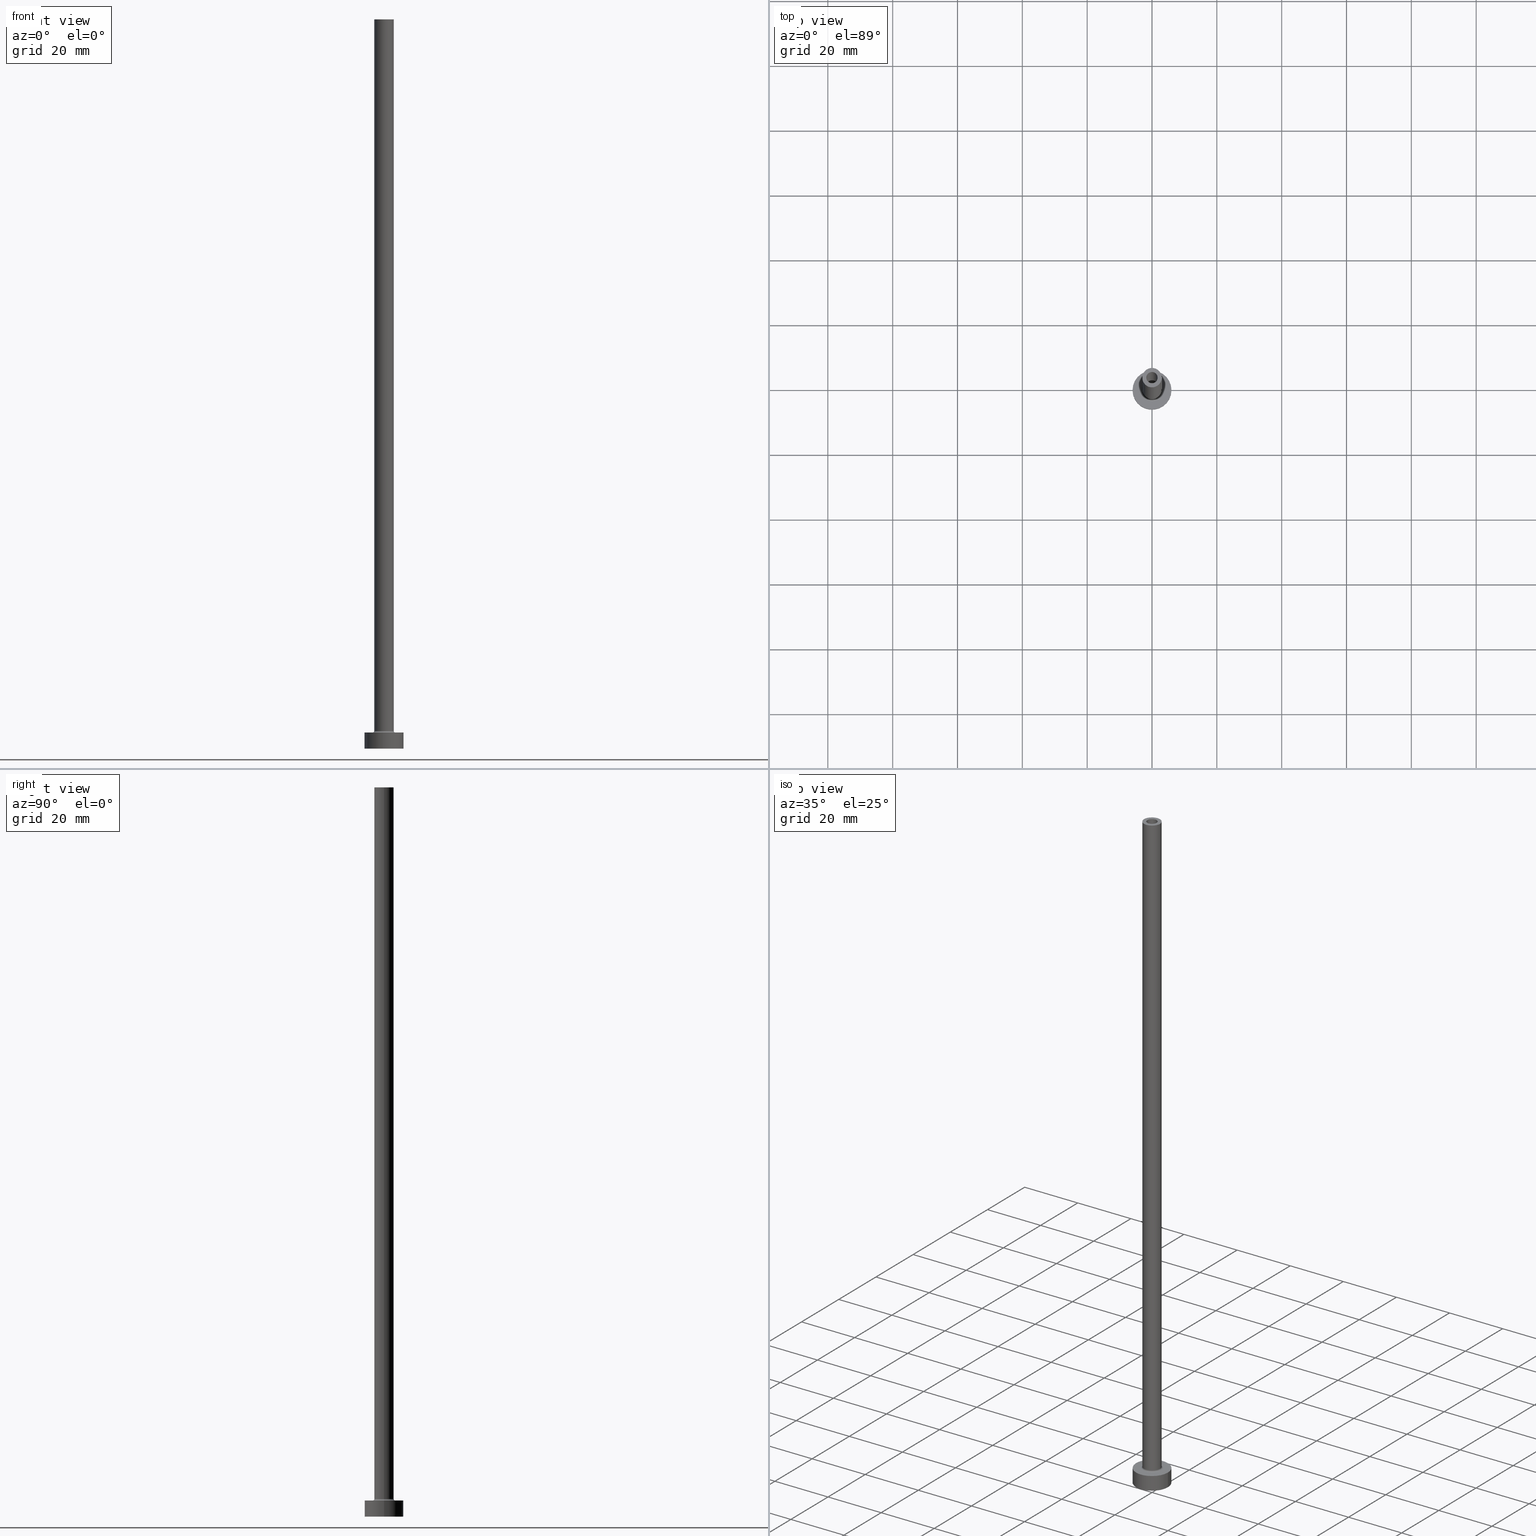
[diagram: canonical four-view strip — front | top / right | iso, engineering-drawing reading convention]
A machine part, canonical four-view strip (front | top / right | iso — engineering-drawing reading convention). The complete STEP part file that produces these views, byte-faithful:
ISO-10303-21;
HEADER;
FILE_DESCRIPTION (( 'STEP AP203' ),
    '1' );
FILE_NAME ('7b9f.STEP',
    '2023-02-13T17:50:50',
    ( '' ),
    ( '' ),
    'SwSTEP 2.0',
    'SolidWorks 2019',
    '' );
FILE_SCHEMA (( 'CONFIG_CONTROL_DESIGN' ));
ENDSEC;

DATA;
#1 = AXIS2_PLACEMENT_3D ( 'NONE', #327, #281, #39 ) ;
#2 = VECTOR ( 'NONE', #253, 1000.000000000000000 ) ;
#3 = ORIENTED_EDGE ( 'NONE', *, *, #32, .T. ) ;
#4 = LOCAL_TIME ( 18, 50, 50.00000000000000000, #168 ) ;
#5 = DIRECTION ( 'NONE',  ( 1.000000000000000000, 0.000000000000000000, 0.000000000000000000 ) ) ;
#6 = EDGE_CURVE ( 'NONE', #291, #380, #91, .T. ) ;
#7 = ORIENTED_EDGE ( 'NONE', *, *, #151, .T. ) ;
#8 = DIRECTION ( 'NONE',  ( 0.000000000000000000, 0.000000000000000000, 1.000000000000000000 ) ) ;
#9 = CARTESIAN_POINT ( 'NONE',  ( 0.000000000000000000, 0.000000000000000000, 0.000000000000000000 ) ) ;
#10 = AXIS2_PLACEMENT_3D ( 'NONE', #56, #21, #300 ) ;
#11 = EDGE_CURVE ( 'NONE', #363, #77, #459, .T. ) ;
#12 = LINE ( 'NONE', #439, #421 ) ;
#13 = DIRECTION ( 'NONE',  ( 0.000000000000000000, 0.000000000000000000, 1.000000000000000000 ) ) ;
#14 = EDGE_CURVE ( 'NONE', #77, #363, #368, .T. ) ;
#15 = CIRCLE ( 'NONE', #156, 6.000000000000000888 ) ;
#16 = AXIS2_PLACEMENT_3D ( 'NONE', #292, #435, #187 ) ;
#17 = COORDINATED_UNIVERSAL_TIME_OFFSET ( 1, 0, .AHEAD. ) ;
#18 = CARTESIAN_POINT ( 'NONE',  ( -1.899999999999999911, 0.000000000000000000, 185.3740115370177648 ) ) ;
#19 = EDGE_LOOP ( 'NONE', ( #279, #171, #223, #461 ) ) ;
#20 = FACE_OUTER_BOUND ( 'NONE', #102, .T. ) ;
#21 = DIRECTION ( 'NONE',  ( 0.000000000000000000, 0.000000000000000000, 1.000000000000000000 ) ) ;
#22 = VERTEX_POINT ( 'NONE', #59 ) ;
#23 = DIRECTION ( 'NONE',  ( 1.000000000000000000, 0.000000000000000000, 0.000000000000000000 ) ) ;
#24 = APPROVAL_DATE_TIME ( #268, #241 ) ;
#25 = ORIENTED_EDGE ( 'NONE', *, *, #444, .T. ) ;
#26 = CIRCLE ( 'NONE', #255, 1.899999999999999911 ) ;
#27 = CIRCLE ( 'NONE', #406, 0.4999999999999995559 ) ;
#28 = CC_DESIGN_APPROVAL ( #219, ( #34 ) ) ;
#29 = DIRECTION ( 'NONE',  ( 0.000000000000000000, -1.000000000000000000, 0.000000000000000000 ) ) ;
#30 = EDGE_LOOP ( 'NONE', ( #212, #113, #88, #57 ) ) ;
#31 = CYLINDRICAL_SURFACE ( 'NONE', #129, 1.750000000000000000 ) ;
#32 = EDGE_CURVE ( 'NONE', #37, #391, #242, .T. ) ;
#33 = AXIS2_PLACEMENT_3D ( 'NONE', #334, #353, #455 ) ;
#34 = PRODUCT_DEFINITION_FORMATION_WITH_SPECIFIED_SOURCE ( 'LIBOVOLN�', '', #38, .NOT_KNOWN. ) ;
#35 = ORIENTED_EDGE ( 'NONE', *, *, #190, .F. ) ;
#36 = DIRECTION ( 'NONE',  ( 1.000000000000000000, 0.000000000000000000, 0.000000000000000000 ) ) ;
#37 = VERTEX_POINT ( 'NONE', #269 ) ;
#38 = PRODUCT ( '7b9f', '7b9f', '', ( #100 ) ) ;
#39 = DIRECTION ( 'NONE',  ( -1.000000000000000000, 0.000000000000000000, 0.000000000000000000 ) ) ;
#40 = ORIENTED_EDGE ( 'NONE', *, *, #14, .T. ) ;
#41 = EDGE_LOOP ( 'NONE', ( #369, #282 ) ) ;
#42 = CARTESIAN_POINT ( 'NONE',  ( -1.750000000000000000, 0.000000000000000000, 225.0000000000000000 ) ) ;
#43 = EDGE_LOOP ( 'NONE', ( #323, #301, #3, #58 ) ) ;
#44 = FACE_OUTER_BOUND ( 'NONE', #105, .T. ) ;
#45 = CLOSED_SHELL ( 'NONE', ( #175, #142, #405, #355, #381, #339, #297, #440, #99, #154, #365, #247, #78, #170 ) ) ;
#46 = UNCERTAINTY_MEASURE_WITH_UNIT (LENGTH_MEASURE( 1.000000000000000082E-05 ), #388, 'distance_accuracy_value', 'NONE');
#47 = CARTESIAN_POINT ( 'NONE',  ( 0.000000000000000000, 0.000000000000000000, 5.000000000000000000 ) ) ;
#48 = ORIENTED_EDGE ( 'NONE', *, *, #348, .T. ) ;
#49 = CARTESIAN_POINT ( 'NONE',  ( 0.000000000000000000, 0.000000000000000000, 5.000000000000000000 ) ) ;
#50 = EDGE_CURVE ( 'NONE', #266, #164, #294, .T. ) ;
#51 = DIRECTION ( 'NONE',  ( 0.000000000000000000, 0.000000000000000000, 1.000000000000000000 ) ) ;
#52 = CIRCLE ( 'NONE', #295, 3.000000000000000444 ) ;
#53 = ORIENTED_EDGE ( 'NONE', *, *, #11, .T. ) ;
#54 = CC_DESIGN_APPROVAL ( #165, ( #285 ) ) ;
#55 = PERSON_AND_ORGANIZATION ( #179, #298 ) ;
#56 = CARTESIAN_POINT ( 'NONE',  ( 0.000000000000000000, 0.000000000000000000, 180.0000000000000000 ) ) ;
#57 = ORIENTED_EDGE ( 'NONE', *, *, #195, .F. ) ;
#58 = ORIENTED_EDGE ( 'NONE', *, *, #210, .F. ) ;
#59 = CARTESIAN_POINT ( 'NONE',  ( 1.750000000000000000, 2.143131898507868297E-16, 225.0000000000000000 ) ) ;
#60 = CARTESIAN_POINT ( 'NONE',  ( 0.000000000000000000, 0.000000000000000000, 225.0000000000000000 ) ) ;
#61 = EDGE_CURVE ( 'NONE', #164, #37, #178, .T. ) ;
#62 = PERSON_AND_ORGANIZATION ( #179, #298 ) ;
#63 = ORIENTED_EDGE ( 'NONE', *, *, #425, .F. ) ;
#64 = DIRECTION ( 'NONE',  ( -0.000000000000000000, -0.000000000000000000, -1.000000000000000000 ) ) ;
#65 = APPROVAL_STATUS ( 'not_yet_approved' ) ;
#66 = AXIS2_PLACEMENT_3D ( 'NONE', #208, #424, #410 ) ;
#67 = APPLICATION_PROTOCOL_DEFINITION ( 'international standard', 'config_control_design', 1994, #148 ) ;
#68 = FACE_OUTER_BOUND ( 'NONE', #423, .T. ) ;
#69 = APPROVAL_DATE_TIME ( #347, #165 ) ;
#70 = EDGE_CURVE ( 'NONE', #319, #169, #81, .T. ) ;
#71 = ORIENTED_EDGE ( 'NONE', *, *, #432, .F. ) ;
#72 =( NAMED_UNIT ( * ) SI_UNIT ( $, .STERADIAN. ) SOLID_ANGLE_UNIT ( ) );
#73 = VERTEX_POINT ( 'NONE', #134 ) ;
#74 = AXIS2_PLACEMENT_3D ( 'NONE', #215, #137, #276 ) ;
#75 = AXIS2_PLACEMENT_3D ( 'NONE', #447, #349, #23 ) ;
#76 = APPROVAL_PERSON_ORGANIZATION ( #55, #241, #133 ) ;
#77 = VERTEX_POINT ( 'NONE', #389 ) ;
#78 = ADVANCED_FACE ( 'NONE', ( #173, #68 ), #387, .F. ) ;
#79 = CARTESIAN_POINT ( 'NONE',  ( -6.000000000000000888, 0.000000000000000000, 5.000000000000000000 ) ) ;
#80 = FACE_OUTER_BOUND ( 'NONE', #90, .T. ) ;
#81 = CIRCLE ( 'NONE', #33, 6.000000000000000888 ) ;
#82 = DIRECTION ( 'NONE',  ( -0.000000000000000000, -0.000000000000000000, -1.000000000000000000 ) ) ;
#83 = DIRECTION ( 'NONE',  ( 1.000000000000000000, 0.000000000000000000, 0.000000000000000000 ) ) ;
#84 = CARTESIAN_POINT ( 'NONE',  ( 1.750000000000000000, 2.143131898507868297E-16, 180.0000000000000000 ) ) ;
#85 = DIRECTION ( 'NONE',  ( 0.000000000000000000, 0.000000000000000000, 1.000000000000000000 ) ) ;
#86 = EDGE_CURVE ( 'NONE', #328, #458, #26, .T. ) ;
#87 = APPROVAL_STATUS ( 'not_yet_approved' ) ;
#88 = ORIENTED_EDGE ( 'NONE', *, *, #86, .T. ) ;
#89 = PERSON_AND_ORGANIZATION ( #179, #298 ) ;
#90 = EDGE_LOOP ( 'NONE', ( #431, #25 ) ) ;
#91 = CIRCLE ( 'NONE', #115, 3.500000000000000444 ) ;
#92 = DIRECTION ( 'NONE',  ( 0.000000000000000000, 0.000000000000000000, 1.000000000000000000 ) ) ;
#93 = CYLINDRICAL_SURFACE ( 'NONE', #422, 6.000000000000000888 ) ;
#94 = LOCAL_TIME ( 18, 50, 50.00000000000000000, #17 ) ;
#95 = EDGE_CURVE ( 'NONE', #141, #251, #209, .T. ) ;
#96 = CARTESIAN_POINT ( 'NONE',  ( 6.000000000000000888, 7.347880794884120722E-16, 5.000000000000000000 ) ) ;
#97 = VECTOR ( 'NONE', #152, 1000.000000000000000 ) ;
#98 = AXIS2_PLACEMENT_3D ( 'NONE', #197, #232, #377 ) ;
#99 = ADVANCED_FACE ( 'NONE', ( #457 ), #236, .T. ) ;
#100 = MECHANICAL_CONTEXT ( 'NONE', #148, 'mechanical' ) ;
#101 = CC_DESIGN_PERSON_AND_ORGANIZATION_ASSIGNMENT ( #89, #378, ( #34 ) ) ;
#102 = EDGE_LOOP ( 'NONE', ( #315, #226, #109, #332 ) ) ;
#103 = SHAPE_DEFINITION_REPRESENTATION ( #284, #437 ) ;
#104 = PERSON_AND_ORGANIZATION ( #179, #298 ) ;
#105 = EDGE_LOOP ( 'NONE', ( #119, #35 ) ) ;
#106 = EDGE_LOOP ( 'NONE', ( #48, #361, #229, #216 ) ) ;
#107 = VECTOR ( 'NONE', #429, 1000.000000000000000 ) ;
#108 = PRODUCT_DEFINITION ( 'NEZN�M�', '', #34, #395 ) ;
#109 = ORIENTED_EDGE ( 'NONE', *, *, #195, .T. ) ;
#110 = FACE_BOUND ( 'NONE', #450, .T. ) ;
#111 = CARTESIAN_POINT ( 'NONE',  ( 1.899999999999999911, 2.326828918379971365E-16, 180.0000000000000000 ) ) ;
#112 = CARTESIAN_POINT ( 'NONE',  ( 1.750000000000000000, 2.143131898507868297E-16, 225.0000000000000000 ) ) ;
#113 = ORIENTED_EDGE ( 'NONE', *, *, #329, .T. ) ;
#114 = FACE_OUTER_BOUND ( 'NONE', #305, .T. ) ;
#115 = AXIS2_PLACEMENT_3D ( 'NONE', #373, #302, #120 ) ;
#116 = TOROIDAL_SURFACE ( 'NONE', #351, 3.500000000000000444, 0.5000000000000000000 ) ;
#117 = DIRECTION ( 'NONE',  ( 0.000000000000000000, 0.000000000000000000, -1.000000000000000000 ) ) ;
#118 = DIRECTION ( 'NONE',  ( 0.000000000000000000, 0.000000000000000000, 1.000000000000000000 ) ) ;
#119 = ORIENTED_EDGE ( 'NONE', *, *, #70, .F. ) ;
#120 = DIRECTION ( 'NONE',  ( 1.000000000000000000, 0.000000000000000000, 0.000000000000000000 ) ) ;
#121 = EDGE_CURVE ( 'NONE', #22, #73, #343, .T. ) ;
#122 = LOCAL_TIME ( 18, 50, 50.00000000000000000, #127 ) ;
#123 = DIRECTION ( 'NONE',  ( -0.000000000000000000, -0.000000000000000000, -1.000000000000000000 ) ) ;
#124 = CYLINDRICAL_SURFACE ( 'NONE', #341, 1.899999999999999911 ) ;
#125 = APPROVAL_DATE_TIME ( #306, #219 ) ;
#126 = EDGE_CURVE ( 'NONE', #37, #291, #427, .T. ) ;
#127 = COORDINATED_UNIVERSAL_TIME_OFFSET ( 1, 0, .AHEAD. ) ;
#128 = ORIENTED_EDGE ( 'NONE', *, *, #420, .T. ) ;
#129 = AXIS2_PLACEMENT_3D ( 'NONE', #324, #280, #250 ) ;
#130 = DIRECTION ( 'NONE',  ( 1.000000000000000000, 0.000000000000000000, 0.000000000000000000 ) ) ;
#131 = PERSON_AND_ORGANIZATION_ROLE ( 'design_owner' ) ;
#132 = DATE_TIME_ROLE ( 'classification_date' ) ;
#133 = APPROVAL_ROLE ( '' ) ;
#134 = CARTESIAN_POINT ( 'NONE',  ( -1.750000000000000000, 0.000000000000000000, 225.0000000000000000 ) ) ;
#135 = ORIENTED_EDGE ( 'NONE', *, *, #121, .T. ) ;
#136 = DIRECTION ( 'NONE',  ( 0.000000000000000000, 0.000000000000000000, 1.000000000000000000 ) ) ;
#137 = DIRECTION ( 'NONE',  ( 0.000000000000000000, 0.000000000000000000, 1.000000000000000000 ) ) ;
#138 = VECTOR ( 'NONE', #402, 1000.000000000000000 ) ;
#139 = CARTESIAN_POINT ( 'NONE',  ( -1.899999999999999911, 0.000000000000000000, 0.000000000000000000 ) ) ;
#140 = AXIS2_PLACEMENT_3D ( 'NONE', #371, #82, #220 ) ;
#141 = VERTEX_POINT ( 'NONE', #96 ) ;
#142 = ADVANCED_FACE ( 'NONE', ( #159 ), #124, .F. ) ;
#143 = VERTEX_POINT ( 'NONE', #375 ) ;
#144 = EDGE_LOOP ( 'NONE', ( #7, #416 ) ) ;
#145 = ORIENTED_EDGE ( 'NONE', *, *, #11, .F. ) ;
#146 = FACE_OUTER_BOUND ( 'NONE', #357, .T. ) ;
#147 = CARTESIAN_POINT ( 'NONE',  ( 0.000000000000000000, 0.000000000000000000, 5.500000000000005329 ) ) ;
#148 = APPLICATION_CONTEXT ( 'configuration controlled 3d designs of mechanical parts and assemblies' ) ;
#149 = CARTESIAN_POINT ( 'NONE',  ( -6.000000000000000888, 0.000000000000000000, 5.000000000000000000 ) ) ;
#150 = EDGE_LOOP ( 'NONE', ( #71, #383 ) ) ;
#151 = EDGE_CURVE ( 'NONE', #251, #141, #222, .T. ) ;
#152 = DIRECTION ( 'NONE',  ( 0.000000000000000000, 0.000000000000000000, -1.000000000000000000 ) ) ;
#153 = CARTESIAN_POINT ( 'NONE',  ( 0.000000000000000000, 0.000000000000000000, 225.0000000000000000 ) ) ;
#154 = ADVANCED_FACE ( 'NONE', ( #110, #80 ), #456, .T. ) ;
#155 = PERSON_AND_ORGANIZATION ( #179, #298 ) ;
#156 = AXIS2_PLACEMENT_3D ( 'NONE', #271, #51, #344 ) ;
#157 = CIRCLE ( 'NONE', #16, 1.899999999999999911 ) ;
#158 = LINE ( 'NONE', #445, #172 ) ;
#159 = FACE_OUTER_BOUND ( 'NONE', #30, .T. ) ;
#160 = APPROVAL_STATUS ( 'not_yet_approved' ) ;
#161 = ORIENTED_EDGE ( 'NONE', *, *, #259, .T. ) ;
#162 = DIRECTION ( 'NONE',  ( 0.000000000000000000, 0.000000000000000000, 1.000000000000000000 ) ) ;
#163 = CARTESIAN_POINT ( 'NONE',  ( -3.500000000000000444, 4.286263797015737088E-16, 5.000000000000002665 ) ) ;
#164 = VERTEX_POINT ( 'NONE', #246 ) ;
#165 = APPROVAL ( #65, 'NEUR�EN�' ) ;
#166 = AXIS2_PLACEMENT_3D ( 'NONE', #417, #64, #385 ) ;
#167 =( NAMED_UNIT ( * ) PLANE_ANGLE_UNIT ( ) SI_UNIT ( $, .RADIAN. ) );
#168 = COORDINATED_UNIVERSAL_TIME_OFFSET ( 1, 0, .AHEAD. ) ;
#169 = VERTEX_POINT ( 'NONE', #176 ) ;
#170 = ADVANCED_FACE ( 'NONE', ( #207 ), #358, .F. ) ;
#171 = ORIENTED_EDGE ( 'NONE', *, *, #50, .F. ) ;
#172 = VECTOR ( 'NONE', #412, 1000.000000000000000 ) ;
#173 = FACE_BOUND ( 'NONE', #267, .T. ) ;
#174 = ORIENTED_EDGE ( 'NONE', *, *, #95, .F. ) ;
#175 = ADVANCED_FACE ( 'NONE', ( #283 ), #31, .F. ) ;
#176 = CARTESIAN_POINT ( 'NONE',  ( 6.000000000000000888, 7.347880794884120722E-16, 0.000000000000000000 ) ) ;
#177 = DIRECTION ( 'NONE',  ( 0.000000000000000000, 0.000000000000000000, 1.000000000000000000 ) ) ;
#178 = LINE ( 'NONE', #286, #107 ) ;
#179 = PERSON ( 'NEUR�EN�', 'NEUR�EN�', 'NEUR�EN�', ('NEUR�EN�'), ('NEUR�EN�'), ('NEUR�EN�') ) ;
#180 = AXIS2_PLACEMENT_3D ( 'NONE', #254, #177, #257 ) ;
#181 = CARTESIAN_POINT ( 'NONE',  ( -3.000000000000000444, 0.000000000000000000, 5.500000000000005329 ) ) ;
#182 = AXIS2_PLACEMENT_3D ( 'NONE', #403, #85, #227 ) ;
#183 = EDGE_CURVE ( 'NONE', #143, #386, #376, .T. ) ;
#184 = FACE_BOUND ( 'NONE', #150, .T. ) ;
#185 = LINE ( 'NONE', #338, #97 ) ;
#186 = CC_DESIGN_DATE_AND_TIME_ASSIGNMENT ( #311, #132, ( #285 ) ) ;
#187 = DIRECTION ( 'NONE',  ( 1.000000000000000000, 0.000000000000000000, 0.000000000000000000 ) ) ;
#188 =( GEOMETRIC_REPRESENTATION_CONTEXT ( 3 ) GLOBAL_UNCERTAINTY_ASSIGNED_CONTEXT ( ( #46 ) ) GLOBAL_UNIT_ASSIGNED_CONTEXT ( ( #388, #167, #72 ) ) REPRESENTATION_CONTEXT ( 'NONE', 'WORKASPACE' ) );
#189 = DIRECTION ( 'NONE',  ( -0.000000000000000000, -0.000000000000000000, -1.000000000000000000 ) ) ;
#190 = EDGE_CURVE ( 'NONE', #169, #319, #15, .T. ) ;
#191 = CARTESIAN_POINT ( 'NONE',  ( 0.000000000000000000, 0.000000000000000000, 180.0000000000000000 ) ) ;
#192 = CYLINDRICAL_SURFACE ( 'NONE', #98, 3.000000000000000444 ) ;
#193 = PERSON_AND_ORGANIZATION ( #179, #298 ) ;
#194 = AXIS2_PLACEMENT_3D ( 'NONE', #337, #293, #290 ) ;
#195 = EDGE_CURVE ( 'NONE', #143, #458, #346, .T. ) ;
#196 = APPROVAL_PERSON_ORGANIZATION ( #240, #165, #204 ) ;
#197 = CARTESIAN_POINT ( 'NONE',  ( 0.000000000000000000, 0.000000000000000000, 225.0000000000000000 ) ) ;
#198 = CARTESIAN_POINT ( 'NONE',  ( 0.000000000000000000, 0.000000000000000000, 5.000000000000000000 ) ) ;
#199 = CALENDAR_DATE ( 2023, 13, 2 ) ;
#200 = CARTESIAN_POINT ( 'NONE',  ( 0.000000000000000000, 0.000000000000000000, 5.500000000000005329 ) ) ;
#201 = AXIS2_PLACEMENT_3D ( 'NONE', #60, #203, #354 ) ;
#202 = AXIS2_PLACEMENT_3D ( 'NONE', #47, #189, #326 ) ;
#203 = DIRECTION ( 'NONE',  ( 0.000000000000000000, 0.000000000000000000, 1.000000000000000000 ) ) ;
#204 = APPROVAL_ROLE ( '' ) ;
#205 = DIRECTION ( 'NONE',  ( 1.000000000000000000, 0.000000000000000000, 0.000000000000000000 ) ) ;
#206 = DIRECTION ( 'NONE',  ( 0.000000000000000000, 0.000000000000000000, 1.000000000000000000 ) ) ;
#207 = FACE_OUTER_BOUND ( 'NONE', #393, .T. ) ;
#208 = CARTESIAN_POINT ( 'NONE',  ( 0.000000000000000000, 0.000000000000000000, 180.0000000000000000 ) ) ;
#209 = CIRCLE ( 'NONE', #372, 6.000000000000000888 ) ;
#210 = EDGE_CURVE ( 'NONE', #266, #391, #158, .T. ) ;
#211 = DIRECTION ( 'NONE',  ( 0.000000000000000000, 0.000000000000000000, 1.000000000000000000 ) ) ;
#212 = ORIENTED_EDGE ( 'NONE', *, *, #183, .T. ) ;
#213 = FACE_BOUND ( 'NONE', #41, .T. ) ;
#214 = DIRECTION ( 'NONE',  ( 1.000000000000000000, 0.000000000000000000, 0.000000000000000000 ) ) ;
#215 = CARTESIAN_POINT ( 'NONE',  ( 0.000000000000000000, 0.000000000000000000, 225.0000000000000000 ) ) ;
#216 = ORIENTED_EDGE ( 'NONE', *, *, #420, .F. ) ;
#217 = ORIENTED_EDGE ( 'NONE', *, *, #460, .F. ) ;
#218 = TOROIDAL_SURFACE ( 'NONE', #75, 3.500000000000000444, 0.5000000000000000000 ) ;
#219 = APPROVAL ( #87, 'NEUR�EN�' ) ;
#220 = DIRECTION ( 'NONE',  ( 1.000000000000000000, 0.000000000000000000, 0.000000000000000000 ) ) ;
#221 = CYLINDRICAL_SURFACE ( 'NONE', #202, 6.000000000000000888 ) ;
#222 = CIRCLE ( 'NONE', #256, 6.000000000000000888 ) ;
#223 = ORIENTED_EDGE ( 'NONE', *, *, #210, .T. ) ;
#224 = CC_DESIGN_PERSON_AND_ORGANIZATION_ASSIGNMENT ( #62, #131, ( #38 ) ) ;
#225 = APPROVAL_ROLE ( '' ) ;
#226 = ORIENTED_EDGE ( 'NONE', *, *, #392, .T. ) ;
#227 = DIRECTION ( 'NONE',  ( 1.000000000000000000, 0.000000000000000000, 0.000000000000000000 ) ) ;
#228 = CIRCLE ( 'NONE', #399, 1.899999999999999911 ) ;
#229 = ORIENTED_EDGE ( 'NONE', *, *, #14, .F. ) ;
#230 = EDGE_LOOP ( 'NONE', ( #174, #161, #336, #446 ) ) ;
#231 = CC_DESIGN_SECURITY_CLASSIFICATION ( #285, ( #34 ) ) ;
#232 = DIRECTION ( 'NONE',  ( -0.000000000000000000, -0.000000000000000000, -1.000000000000000000 ) ) ;
#233 = COORDINATED_UNIVERSAL_TIME_OFFSET ( 1, 0, .AHEAD. ) ;
#234 = DIRECTION ( 'NONE',  ( 1.000000000000000000, 0.000000000000000000, 0.000000000000000000 ) ) ;
#235 = DIRECTION ( 'NONE',  ( -1.000000000000000000, 0.000000000000000000, 0.000000000000000000 ) ) ;
#236 = CYLINDRICAL_SURFACE ( 'NONE', #166, 3.000000000000000444 ) ;
#237 = PERSON_AND_ORGANIZATION ( #179, #298 ) ;
#238 = CARTESIAN_POINT ( 'NONE',  ( -3.000000000000000444, 0.000000000000000000, 225.0000000000000000 ) ) ;
#239 = ORIENTED_EDGE ( 'NONE', *, *, #252, .F. ) ;
#240 = PERSON_AND_ORGANIZATION ( #179, #298 ) ;
#241 = APPROVAL ( #160, 'NEUR�EN�' ) ;
#242 = CIRCLE ( 'NONE', #261, 3.000000000000000444 ) ;
#243 = DIRECTION ( 'NONE',  ( 1.000000000000000000, 0.000000000000000000, -0.000000000000000000 ) ) ;
#244 = COORDINATED_UNIVERSAL_TIME_OFFSET ( 1, 0, .AHEAD. ) ;
#245 = LOCAL_TIME ( 18, 50, 50.00000000000000000, #244 ) ;
#246 = CARTESIAN_POINT ( 'NONE',  ( 3.000000000000000444, 3.673940397442060361E-16, 225.0000000000000000 ) ) ;
#247 = ADVANCED_FACE ( 'NONE', ( #20 ), #449, .F. ) ;
#248 = ORIENTED_EDGE ( 'NONE', *, *, #259, .F. ) ;
#249 = CARTESIAN_POINT ( 'NONE',  ( 0.000000000000000000, 0.000000000000000000, 0.000000000000000000 ) ) ;
#250 = DIRECTION ( 'NONE',  ( -1.000000000000000000, 0.000000000000000000, 0.000000000000000000 ) ) ;
#251 = VERTEX_POINT ( 'NONE', #149 ) ;
#252 = EDGE_CURVE ( 'NONE', #22, #363, #258, .T. ) ;
#253 = DIRECTION ( 'NONE',  ( -0.000000000000000000, -0.000000000000000000, -1.000000000000000000 ) ) ;
#254 = CARTESIAN_POINT ( 'NONE',  ( 0.000000000000000000, 0.000000000000000000, 5.000000000000000000 ) ) ;
#255 = AXIS2_PLACEMENT_3D ( 'NONE', #382, #356, #451 ) ;
#256 = AXIS2_PLACEMENT_3D ( 'NONE', #414, #92, #330 ) ;
#257 = DIRECTION ( 'NONE',  ( 1.000000000000000000, 0.000000000000000000, -0.000000000000000000 ) ) ;
#258 = LINE ( 'NONE', #112, #138 ) ;
#259 = EDGE_CURVE ( 'NONE', #141, #169, #12, .T. ) ;
#260 = DIRECTION ( 'NONE',  ( 0.000000000000000000, 0.000000000000000000, 1.000000000000000000 ) ) ;
#261 = AXIS2_PLACEMENT_3D ( 'NONE', #200, #260, #234 ) ;
#262 = VECTOR ( 'NONE', #397, 1000.000000000000000 ) ;
#263 = LOCAL_TIME ( 18, 50, 50.00000000000000000, #233 ) ;
#264 = DIRECTION ( 'NONE',  ( 0.000000000000000000, 0.000000000000000000, -1.000000000000000000 ) ) ;
#265 = CALENDAR_DATE ( 2023, 13, 2 ) ;
#266 = VERTEX_POINT ( 'NONE', #238 ) ;
#267 = EDGE_LOOP ( 'NONE', ( #40, #53 ) ) ;
#268 = DATE_AND_TIME ( #199, #122 ) ;
#269 = CARTESIAN_POINT ( 'NONE',  ( 3.000000000000000444, 3.673940397442060361E-16, 5.500000000000005329 ) ) ;
#270 = AXIS2_PLACEMENT_3D ( 'NONE', #249, #211, #36 ) ;
#271 = CARTESIAN_POINT ( 'NONE',  ( 0.000000000000000000, 0.000000000000000000, 0.000000000000000000 ) ) ;
#272 = DIRECTION ( 'NONE',  ( 1.224646799147353207E-16, 1.000000000000000000, -0.000000000000000000 ) ) ;
#273 = MANIFOLD_SOLID_BREP ( 'Odebrat vysunut�m4', #45 ) ;
#274 = AXIS2_PLACEMENT_3D ( 'NONE', #147, #118, #434 ) ;
#275 = ORIENTED_EDGE ( 'NONE', *, *, #70, .T. ) ;
#276 = DIRECTION ( 'NONE',  ( 1.000000000000000000, 0.000000000000000000, -0.000000000000000000 ) ) ;
#277 = CIRCLE ( 'NONE', #140, 3.500000000000000444 ) ;
#278 = PERSON_AND_ORGANIZATION_ROLE ( 'classification_officer' ) ;
#279 = ORIENTED_EDGE ( 'NONE', *, *, #61, .F. ) ;
#280 = DIRECTION ( 'NONE',  ( 0.000000000000000000, 0.000000000000000000, -1.000000000000000000 ) ) ;
#281 = DIRECTION ( 'NONE',  ( 0.000000000000000000, 0.000000000000000000, -1.000000000000000000 ) ) ;
#282 = ORIENTED_EDGE ( 'NONE', *, *, #425, .T. ) ;
#283 = FACE_OUTER_BOUND ( 'NONE', #106, .T. ) ;
#284 = PRODUCT_DEFINITION_SHAPE ( 'NONE', 'NONE',  #108 ) ;
#285 = SECURITY_CLASSIFICATION ( '', '', #418 ) ;
#286 = CARTESIAN_POINT ( 'NONE',  ( 3.000000000000000444, 3.673940397442060361E-16, 225.0000000000000000 ) ) ;
#287 = CC_DESIGN_DATE_AND_TIME_ASSIGNMENT ( #314, #409, ( #108 ) ) ;
#288 = ORIENTED_EDGE ( 'NONE', *, *, #126, .F. ) ;
#289 = PLANE ( 'NONE',  #194 ) ;
#290 = DIRECTION ( 'NONE',  ( 1.000000000000000000, 0.000000000000000000, -0.000000000000000000 ) ) ;
#291 = VERTEX_POINT ( 'NONE', #299 ) ;
#292 = CARTESIAN_POINT ( 'NONE',  ( 0.000000000000000000, 0.000000000000000000, 180.0000000000000000 ) ) ;
#293 = DIRECTION ( 'NONE',  ( 0.000000000000000000, 0.000000000000000000, 1.000000000000000000 ) ) ;
#294 = CIRCLE ( 'NONE', #350, 3.000000000000000444 ) ;
#295 = AXIS2_PLACEMENT_3D ( 'NONE', #153, #13, #205 ) ;
#296 = PLANE ( 'NONE',  #180 ) ;
#297 = ADVANCED_FACE ( 'NONE', ( #213, #438 ), #296, .T. ) ;
#298 = ORGANIZATION ( 'NEUR�EN�', 'NEUR�EN�', '' ) ;
#299 = CARTESIAN_POINT ( 'NONE',  ( 3.500000000000000444, 0.000000000000000000, 5.000000000000002665 ) ) ;
#300 = DIRECTION ( 'NONE',  ( 1.000000000000000000, 0.000000000000000000, 0.000000000000000000 ) ) ;
#301 = ORIENTED_EDGE ( 'NONE', *, *, #61, .T. ) ;
#302 = DIRECTION ( 'NONE',  ( -0.000000000000000000, -0.000000000000000000, -1.000000000000000000 ) ) ;
#303 = CIRCLE ( 'NONE', #274, 3.000000000000000444 ) ;
#304 = PERSON_AND_ORGANIZATION_ROLE ( 'creator' ) ;
#305 = EDGE_LOOP ( 'NONE', ( #248, #433, #310, #275 ) ) ;
#306 = DATE_AND_TIME ( #265, #94 ) ;
#307 = CARTESIAN_POINT ( 'NONE',  ( 0.000000000000000000, 0.000000000000000000, 185.3740115370177648 ) ) ;
#308 = FACE_OUTER_BOUND ( 'NONE', #362, .T. ) ;
#309 = ORIENTED_EDGE ( 'NONE', *, *, #348, .F. ) ;
#310 = ORIENTED_EDGE ( 'NONE', *, *, #398, .T. ) ;
#311 = DATE_AND_TIME ( #359, #245 ) ;
#312 = FACE_OUTER_BOUND ( 'NONE', #230, .T. ) ;
#313 = AXIS2_PLACEMENT_3D ( 'NONE', #191, #342, #411 ) ;
#314 = DATE_AND_TIME ( #442, #263 ) ;
#315 = ORIENTED_EDGE ( 'NONE', *, *, #329, .F. ) ;
#316 = CARTESIAN_POINT ( 'NONE',  ( 0.000000000000000000, 0.000000000000000000, 180.0000000000000000 ) ) ;
#317 = CALENDAR_DATE ( 2023, 13, 2 ) ;
#318 = CARTESIAN_POINT ( 'NONE',  ( -3.500000000000000444, 4.286263797015737088E-16, 5.500000000000005329 ) ) ;
#319 = VERTEX_POINT ( 'NONE', #367 ) ;
#320 = EDGE_CURVE ( 'NONE', #391, #37, #303, .T. ) ;
#321 = DIRECTION ( 'NONE',  ( -1.000000000000000000, 1.224646799147354440E-16, 0.000000000000000000 ) ) ;
#322 = CIRCLE ( 'NONE', #182, 1.750000000000000000 ) ;
#323 = ORIENTED_EDGE ( 'NONE', *, *, #444, .F. ) ;
#324 = CARTESIAN_POINT ( 'NONE',  ( 0.000000000000000000, 0.000000000000000000, 225.0000000000000000 ) ) ;
#325 = CC_DESIGN_PERSON_AND_ORGANIZATION_ASSIGNMENT ( #237, #278, ( #285 ) ) ;
#326 = DIRECTION ( 'NONE',  ( -1.000000000000000000, 0.000000000000000000, 0.000000000000000000 ) ) ;
#327 = CARTESIAN_POINT ( 'NONE',  ( 0.000000000000000000, 0.000000000000000000, 225.0000000000000000 ) ) ;
#328 = VERTEX_POINT ( 'NONE', #370 ) ;
#329 = EDGE_CURVE ( 'NONE', #386, #328, #185, .T. ) ;
#330 = DIRECTION ( 'NONE',  ( 1.000000000000000000, 0.000000000000000000, 0.000000000000000000 ) ) ;
#331 = VECTOR ( 'NONE', #419, 1000.000000000000000 ) ;
#332 = ORIENTED_EDGE ( 'NONE', *, *, #432, .T. ) ;
#333 = ORIENTED_EDGE ( 'NONE', *, *, #460, .T. ) ;
#334 = CARTESIAN_POINT ( 'NONE',  ( 0.000000000000000000, 0.000000000000000000, 0.000000000000000000 ) ) ;
#335 = LINE ( 'NONE', #79, #2 ) ;
#336 = ORIENTED_EDGE ( 'NONE', *, *, #190, .T. ) ;
#337 = CARTESIAN_POINT ( 'NONE',  ( 0.000000000000000000, 0.000000000000000000, 0.000000000000000000 ) ) ;
#338 = CARTESIAN_POINT ( 'NONE',  ( 1.899999999999999911, 2.326828918379971365E-16, 185.3740115370177648 ) ) ;
#339 = ADVANCED_FACE ( 'NONE', ( #114 ), #93, .T. ) ;
#340 = LINE ( 'NONE', #42, #262 ) ;
#341 = AXIS2_PLACEMENT_3D ( 'NONE', #307, #264, #235 ) ;
#342 = DIRECTION ( 'NONE',  ( 0.000000000000000000, 0.000000000000000000, 1.000000000000000000 ) ) ;
#343 = CIRCLE ( 'NONE', #201, 1.750000000000000000 ) ;
#344 = DIRECTION ( 'NONE',  ( 1.000000000000000000, 0.000000000000000000, 0.000000000000000000 ) ) ;
#345 = CC_DESIGN_APPROVAL ( #241, ( #108 ) ) ;
#346 = LINE ( 'NONE', #18, #331 ) ;
#347 = DATE_AND_TIME ( #317, #4 ) ;
#348 = EDGE_CURVE ( 'NONE', #73, #22, #322, .T. ) ;
#349 = DIRECTION ( 'NONE',  ( 0.000000000000000000, 0.000000000000000000, 1.000000000000000000 ) ) ;
#350 = AXIS2_PLACEMENT_3D ( 'NONE', #384, #136, #83 ) ;
#351 = AXIS2_PLACEMENT_3D ( 'NONE', #400, #8, #214 ) ;
#352 = CARTESIAN_POINT ( 'NONE',  ( 3.500000000000000444, 0.000000000000000000, 5.500000000000005329 ) ) ;
#353 = DIRECTION ( 'NONE',  ( 0.000000000000000000, 0.000000000000000000, 1.000000000000000000 ) ) ;
#354 = DIRECTION ( 'NONE',  ( 1.000000000000000000, 0.000000000000000000, 0.000000000000000000 ) ) ;
#355 = ADVANCED_FACE ( 'NONE', ( #374 ), #192, .T. ) ;
#356 = DIRECTION ( 'NONE',  ( -0.000000000000000000, -0.000000000000000000, -1.000000000000000000 ) ) ;
#357 = EDGE_LOOP ( 'NONE', ( #413, #333, #379, #288 ) ) ;
#358 = CYLINDRICAL_SURFACE ( 'NONE', #1, 1.750000000000000000 ) ;
#359 = CALENDAR_DATE ( 2023, 13, 2 ) ;
#360 = AXIS2_PLACEMENT_3D ( 'NONE', #316, #206, #243 ) ;
#361 = ORIENTED_EDGE ( 'NONE', *, *, #252, .T. ) ;
#362 = EDGE_LOOP ( 'NONE', ( #217, #396, #390, #63 ) ) ;
#363 = VERTEX_POINT ( 'NONE', #84 ) ;
#364 = ORIENTED_EDGE ( 'NONE', *, *, #183, .F. ) ;
#365 = ADVANCED_FACE ( 'NONE', ( #308 ), #218, .F. ) ;
#366 = DIRECTION ( 'NONE',  ( -0.000000000000000000, -0.000000000000000000, -1.000000000000000000 ) ) ;
#367 = CARTESIAN_POINT ( 'NONE',  ( -6.000000000000000888, 0.000000000000000000, 0.000000000000000000 ) ) ;
#368 = CIRCLE ( 'NONE', #10, 1.750000000000000000 ) ;
#369 = ORIENTED_EDGE ( 'NONE', *, *, #6, .T. ) ;
#370 = CARTESIAN_POINT ( 'NONE',  ( 1.899999999999999911, 2.326828918379971365E-16, 0.000000000000000000 ) ) ;
#371 = CARTESIAN_POINT ( 'NONE',  ( 0.000000000000000000, 0.000000000000000000, 5.000000000000000000 ) ) ;
#372 = AXIS2_PLACEMENT_3D ( 'NONE', #198, #162, #130 ) ;
#373 = CARTESIAN_POINT ( 'NONE',  ( 0.000000000000000000, 0.000000000000000000, 5.000000000000000000 ) ) ;
#374 = FACE_OUTER_BOUND ( 'NONE', #43, .T. ) ;
#375 = CARTESIAN_POINT ( 'NONE',  ( -1.899999999999999911, 0.000000000000000000, 180.0000000000000000 ) ) ;
#376 = CIRCLE ( 'NONE', #66, 1.899999999999999911 ) ;
#377 = DIRECTION ( 'NONE',  ( -1.000000000000000000, 0.000000000000000000, 0.000000000000000000 ) ) ;
#378 = PERSON_AND_ORGANIZATION_ROLE ( 'creator' ) ;
#379 = ORIENTED_EDGE ( 'NONE', *, *, #6, .F. ) ;
#380 = VERTEX_POINT ( 'NONE', #163 ) ;
#381 = ADVANCED_FACE ( 'NONE', ( #312 ), #221, .T. ) ;
#382 = CARTESIAN_POINT ( 'NONE',  ( 0.000000000000000000, 0.000000000000000000, 0.000000000000000000 ) ) ;
#383 = ORIENTED_EDGE ( 'NONE', *, *, #86, .F. ) ;
#384 = CARTESIAN_POINT ( 'NONE',  ( 0.000000000000000000, 0.000000000000000000, 225.0000000000000000 ) ) ;
#385 = DIRECTION ( 'NONE',  ( -1.000000000000000000, 0.000000000000000000, 0.000000000000000000 ) ) ;
#386 = VERTEX_POINT ( 'NONE', #111 ) ;
#387 = PLANE ( 'NONE',  #360 ) ;
#388 =( LENGTH_UNIT ( ) NAMED_UNIT ( * ) SI_UNIT ( .MILLI., .METRE. ) );
#389 = CARTESIAN_POINT ( 'NONE',  ( -1.750000000000000000, 0.000000000000000000, 180.0000000000000000 ) ) ;
#390 = ORIENTED_EDGE ( 'NONE', *, *, #126, .T. ) ;
#391 = VERTEX_POINT ( 'NONE', #181 ) ;
#392 = EDGE_CURVE ( 'NONE', #386, #143, #157, .T. ) ;
#393 = EDGE_LOOP ( 'NONE', ( #239, #135, #128, #145 ) ) ;
#394 = ORIENTED_EDGE ( 'NONE', *, *, #121, .F. ) ;
#395 = DESIGN_CONTEXT ( 'detailed design', #428, 'design' ) ;
#396 = ORIENTED_EDGE ( 'NONE', *, *, #32, .F. ) ;
#397 = DIRECTION ( 'NONE',  ( 0.000000000000000000, 0.000000000000000000, -1.000000000000000000 ) ) ;
#398 = EDGE_CURVE ( 'NONE', #251, #319, #335, .T. ) ;
#399 = AXIS2_PLACEMENT_3D ( 'NONE', #9, #366, #5 ) ;
#400 = CARTESIAN_POINT ( 'NONE',  ( 0.000000000000000000, 0.000000000000000000, 5.500000000000005329 ) ) ;
#401 = CC_DESIGN_PERSON_AND_ORGANIZATION_ASSIGNMENT ( #104, #452, ( #34 ) ) ;
#402 = DIRECTION ( 'NONE',  ( 0.000000000000000000, 0.000000000000000000, -1.000000000000000000 ) ) ;
#403 = CARTESIAN_POINT ( 'NONE',  ( 0.000000000000000000, 0.000000000000000000, 225.0000000000000000 ) ) ;
#404 = DIRECTION ( 'NONE',  ( -0.000000000000000000, -0.000000000000000000, -1.000000000000000000 ) ) ;
#405 = ADVANCED_FACE ( 'NONE', ( #146 ), #116, .F. ) ;
#406 = AXIS2_PLACEMENT_3D ( 'NONE', #318, #272, #321 ) ;
#407 = APPROVAL_PERSON_ORGANIZATION ( #193, #219, #225 ) ;
#408 = DIRECTION ( 'NONE',  ( -1.000000000000000000, 0.000000000000000000, 0.000000000000000000 ) ) ;
#409 = DATE_TIME_ROLE ( 'creation_date' ) ;
#410 = DIRECTION ( 'NONE',  ( 1.000000000000000000, 0.000000000000000000, 0.000000000000000000 ) ) ;
#411 = DIRECTION ( 'NONE',  ( 1.000000000000000000, 0.000000000000000000, 0.000000000000000000 ) ) ;
#412 = DIRECTION ( 'NONE',  ( -0.000000000000000000, -0.000000000000000000, -1.000000000000000000 ) ) ;
#413 = ORIENTED_EDGE ( 'NONE', *, *, #320, .F. ) ;
#414 = CARTESIAN_POINT ( 'NONE',  ( 0.000000000000000000, 0.000000000000000000, 5.000000000000000000 ) ) ;
#415 = CARTESIAN_POINT ( 'NONE',  ( 0.000000000000000000, 0.000000000000000000, 185.3740115370177648 ) ) ;
#416 = ORIENTED_EDGE ( 'NONE', *, *, #95, .T. ) ;
#417 = CARTESIAN_POINT ( 'NONE',  ( 0.000000000000000000, 0.000000000000000000, 225.0000000000000000 ) ) ;
#418 = SECURITY_CLASSIFICATION_LEVEL ( 'unclassified' ) ;
#419 = DIRECTION ( 'NONE',  ( 0.000000000000000000, 0.000000000000000000, -1.000000000000000000 ) ) ;
#420 = EDGE_CURVE ( 'NONE', #73, #77, #340, .T. ) ;
#421 = VECTOR ( 'NONE', #404, 1000.000000000000000 ) ;
#422 = AXIS2_PLACEMENT_3D ( 'NONE', #49, #123, #408 ) ;
#423 = EDGE_LOOP ( 'NONE', ( #364, #426 ) ) ;
#424 = DIRECTION ( 'NONE',  ( 0.000000000000000000, 0.000000000000000000, 1.000000000000000000 ) ) ;
#425 = EDGE_CURVE ( 'NONE', #380, #291, #277, .T. ) ;
#426 = ORIENTED_EDGE ( 'NONE', *, *, #392, .F. ) ;
#427 = CIRCLE ( 'NONE', #436, 0.5000000000000004441 ) ;
#428 = APPLICATION_CONTEXT ( 'configuration controlled 3d designs of mechanical parts and assemblies' ) ;
#429 = DIRECTION ( 'NONE',  ( -0.000000000000000000, -0.000000000000000000, -1.000000000000000000 ) ) ;
#430 = DIRECTION ( 'NONE',  ( -1.000000000000000000, 0.000000000000000000, 0.000000000000000000 ) ) ;
#431 = ORIENTED_EDGE ( 'NONE', *, *, #50, .T. ) ;
#432 = EDGE_CURVE ( 'NONE', #458, #328, #228, .T. ) ;
#433 = ORIENTED_EDGE ( 'NONE', *, *, #151, .F. ) ;
#434 = DIRECTION ( 'NONE',  ( 1.000000000000000000, 0.000000000000000000, 0.000000000000000000 ) ) ;
#435 = DIRECTION ( 'NONE',  ( 0.000000000000000000, 0.000000000000000000, 1.000000000000000000 ) ) ;
#436 = AXIS2_PLACEMENT_3D ( 'NONE', #352, #29, #443 ) ;
#437 = ADVANCED_BREP_SHAPE_REPRESENTATION ( '7b9f', ( #273, #270 ), #188 ) ;
#438 = FACE_OUTER_BOUND ( 'NONE', #144, .T. ) ;
#439 = CARTESIAN_POINT ( 'NONE',  ( 6.000000000000000888, 7.347880794884120722E-16, 5.000000000000000000 ) ) ;
#440 = ADVANCED_FACE ( 'NONE', ( #184, #44 ), #289, .F. ) ;
#441 = AXIS2_PLACEMENT_3D ( 'NONE', #415, #117, #430 ) ;
#442 = CALENDAR_DATE ( 2023, 13, 2 ) ;
#443 = DIRECTION ( 'NONE',  ( 0.000000000000000000, 0.000000000000000000, -1.000000000000000000 ) ) ;
#444 = EDGE_CURVE ( 'NONE', #164, #266, #52, .T. ) ;
#445 = CARTESIAN_POINT ( 'NONE',  ( -3.000000000000000444, 0.000000000000000000, 225.0000000000000000 ) ) ;
#446 = ORIENTED_EDGE ( 'NONE', *, *, #398, .F. ) ;
#447 = CARTESIAN_POINT ( 'NONE',  ( 0.000000000000000000, 0.000000000000000000, 5.500000000000005329 ) ) ;
#448 = PRODUCT_RELATED_PRODUCT_CATEGORY ( 'detail', '', ( #38 ) ) ;
#449 = CYLINDRICAL_SURFACE ( 'NONE', #441, 1.899999999999999911 ) ;
#450 = EDGE_LOOP ( 'NONE', ( #309, #394 ) ) ;
#451 = DIRECTION ( 'NONE',  ( 1.000000000000000000, 0.000000000000000000, 0.000000000000000000 ) ) ;
#452 = PERSON_AND_ORGANIZATION_ROLE ( 'design_supplier' ) ;
#453 = APPLICATION_PROTOCOL_DEFINITION ( 'international standard', 'config_control_design', 1994, #428 ) ;
#454 = CC_DESIGN_PERSON_AND_ORGANIZATION_ASSIGNMENT ( #155, #304, ( #108 ) ) ;
#455 = DIRECTION ( 'NONE',  ( 1.000000000000000000, 0.000000000000000000, 0.000000000000000000 ) ) ;
#456 = PLANE ( 'NONE',  #74 ) ;
#457 = FACE_OUTER_BOUND ( 'NONE', #19, .T. ) ;
#458 = VERTEX_POINT ( 'NONE', #139 ) ;
#459 = CIRCLE ( 'NONE', #313, 1.750000000000000000 ) ;
#460 = EDGE_CURVE ( 'NONE', #391, #380, #27, .T. ) ;
#461 = ORIENTED_EDGE ( 'NONE', *, *, #320, .T. ) ;
ENDSEC;
END-ISO-10303-21;
